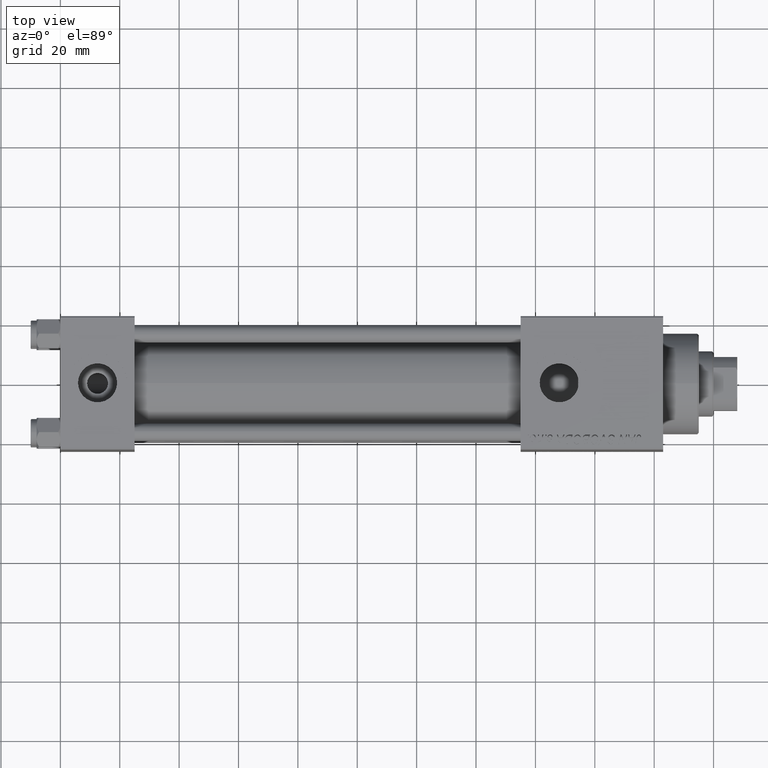
[diagram: clean part render]
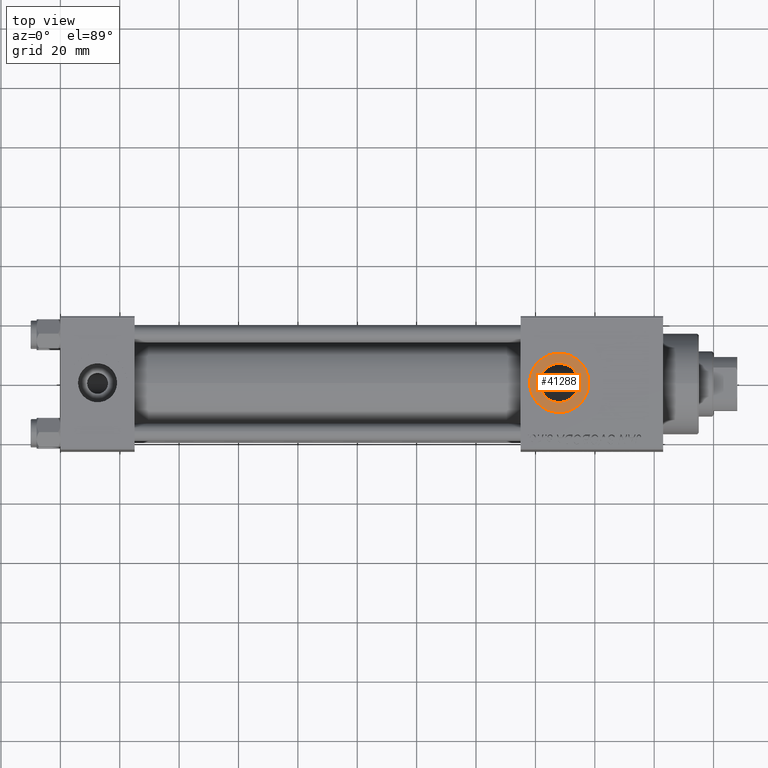
[diagram: same view with one face highlighted and labeled with its STEP entity id]
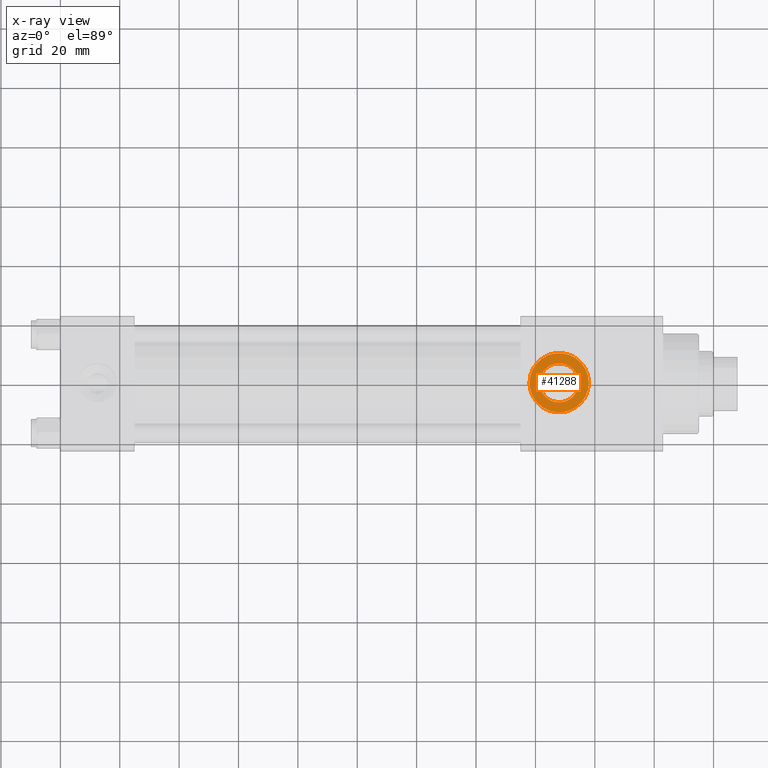
[diagram: x-ray of the same camera — body ghosted, the highlighted face saturated]
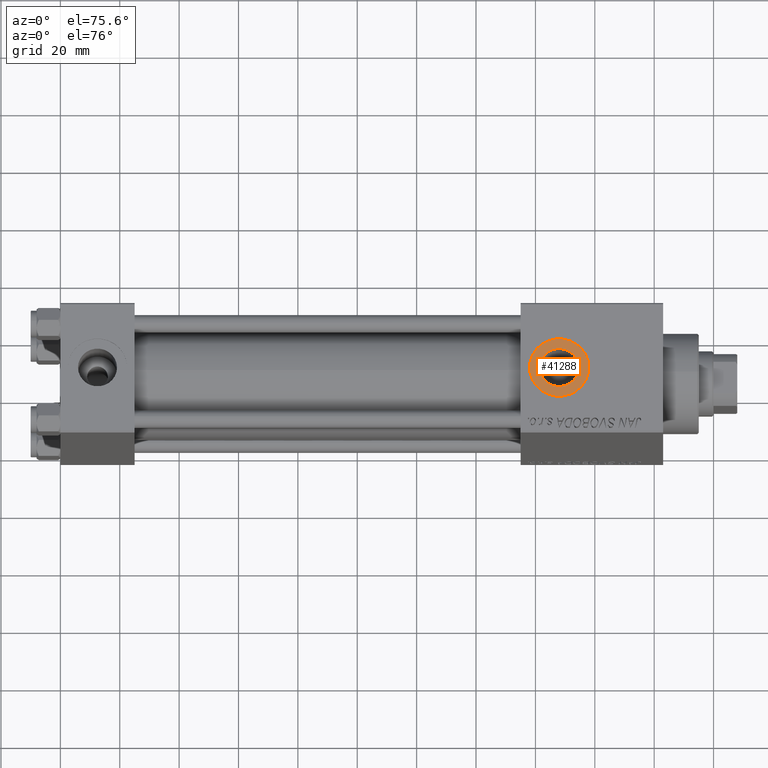
[diagram: same view with one face highlighted and labeled with its STEP entity id]
A machine part, top view. The second image highlights one B-rep face of the part: STEP entity #41288.
The next image is the same camera in x-ray: the body ghosted, the highlighted face saturated — about 0% of this face is hidden behind the body in this view.
A second angle (auxiliary view) of the same face is appended — the face is thin or edge-on in the first view.
In plain terms, the highlighted planar face has unit normal (0, 0, 1).
Its self-contained STEP definition (entity closure, byte-faithful):
#1065 = DIRECTION ( 'NONE',  ( 1.000000000000000000, 0.000000000000000000, 0.000000000000000000 ) ) ;
#1223 = ORIENTED_EDGE ( 'NONE', *, *, #8286, .T. ) ;
#1520 = CARTESIAN_POINT ( 'NONE',  ( 168.0000000000000284, -5.204170427930420494E-15, 22.29999999999999716 ) ) ;
#1578 = DIRECTION ( 'NONE',  ( -0.000000000000000000, -0.000000000000000000, -1.000000000000000000 ) ) ;
#3639 = AXIS2_PLACEMENT_3D ( 'NONE', #5268, #20285, #35811 ) ;
#3694 = EDGE_CURVE ( 'NONE', #50019, #3769, #5818, .T. ) ;
#3769 = VERTEX_POINT ( 'NONE', #23950 ) ;
#3942 = CARTESIAN_POINT ( 'NONE',  ( 161.4200000000000443, -5.204170427930420494E-15, 22.29999999999999716 ) ) ;
#4450 = CIRCLE ( 'NONE', #3639, 10.00000000000000888 ) ;
#5268 = CARTESIAN_POINT ( 'NONE',  ( 168.0000000000000284, -5.204170427930420494E-15, 22.29999999999999716 ) ) ;
#5590 = DIRECTION ( 'NONE',  ( 1.000000000000000000, 0.000000000000000000, -0.000000000000000000 ) ) ;
#5818 = CIRCLE ( 'NONE', #49695, 10.00000000000000888 ) ;
#6143 = CARTESIAN_POINT ( 'NONE',  ( 168.0000000000000284, -5.204170427930420494E-15, 22.29999999999999716 ) ) ;
#8286 = EDGE_CURVE ( 'NONE', #38141, #33014, #8394, .T. ) ;
#8394 = CIRCLE ( 'NONE', #28704, 6.580000000000002736 ) ;
#10150 = DIRECTION ( 'NONE',  ( 0.000000000000000000, 0.000000000000000000, 1.000000000000000000 ) ) ;
#10273 = ORIENTED_EDGE ( 'NONE', *, *, #3694, .T. ) ;
#12000 = DIRECTION ( 'NONE',  ( 0.000000000000000000, 0.000000000000000000, 1.000000000000000000 ) ) ;
#13730 = FACE_OUTER_BOUND ( 'NONE', #15746, .T. ) ;
#15625 = ORIENTED_EDGE ( 'NONE', *, *, #19298, .T. ) ;
#15746 = EDGE_LOOP ( 'NONE', ( #26513, #10273 ) ) ;
#16698 = CARTESIAN_POINT ( 'NONE',  ( 174.5800000000000409, -4.398352834091458297E-15, 22.29999999999999716 ) ) ;
#19298 = EDGE_CURVE ( 'NONE', #33014, #38141, #21529, .T. ) ;
#19385 = CARTESIAN_POINT ( 'NONE',  ( 168.0000000000000284, -5.204170427930420494E-15, 22.29999999999999716 ) ) ;
#19903 = EDGE_CURVE ( 'NONE', #3769, #50019, #4450, .T. ) ;
#20285 = DIRECTION ( 'NONE',  ( 0.000000000000000000, 0.000000000000000000, 1.000000000000000000 ) ) ;
#21529 = CIRCLE ( 'NONE', #35342, 6.580000000000002736 ) ;
#23950 = CARTESIAN_POINT ( 'NONE',  ( 178.0000000000000568, -5.204170427930420494E-15, 22.29999999999999716 ) ) ;
#25221 = CARTESIAN_POINT ( 'NONE',  ( 168.0000000000000284, -5.204170427930420494E-15, 22.29999999999999716 ) ) ;
#26513 = ORIENTED_EDGE ( 'NONE', *, *, #19903, .T. ) ;
#28158 = AXIS2_PLACEMENT_3D ( 'NONE', #1520, #10150, #5590 ) ;
#28704 = AXIS2_PLACEMENT_3D ( 'NONE', #6143, #1578, #47909 ) ;
#29734 = PLANE ( 'NONE',  #28158 ) ;
#32611 = DIRECTION ( 'NONE',  ( -0.000000000000000000, -0.000000000000000000, -1.000000000000000000 ) ) ;
#33014 = VERTEX_POINT ( 'NONE', #3942 ) ;
#34492 = EDGE_LOOP ( 'NONE', ( #15625, #1223 ) ) ;
#35342 = AXIS2_PLACEMENT_3D ( 'NONE', #25221, #32611, #1065 ) ;
#35811 = DIRECTION ( 'NONE',  ( 1.000000000000000000, 0.000000000000000000, 0.000000000000000000 ) ) ;
#38141 = VERTEX_POINT ( 'NONE', #16698 ) ;
#40453 = FACE_BOUND ( 'NONE', #34492, .T. ) ;
#41288 = ADVANCED_FACE ( 'NONE', ( #40453, #13730 ), #29734, .T. ) ;
#46617 = DIRECTION ( 'NONE',  ( 1.000000000000000000, 0.000000000000000000, 0.000000000000000000 ) ) ;
#47909 = DIRECTION ( 'NONE',  ( 1.000000000000000000, 0.000000000000000000, 0.000000000000000000 ) ) ;
#49695 = AXIS2_PLACEMENT_3D ( 'NONE', #19385, #12000, #46617 ) ;
#50012 = CARTESIAN_POINT ( 'NONE',  ( 158.0000000000000284, -3.979523628783065857E-15, 22.29999999999999716 ) ) ;
#50019 = VERTEX_POINT ( 'NONE', #50012 ) ;